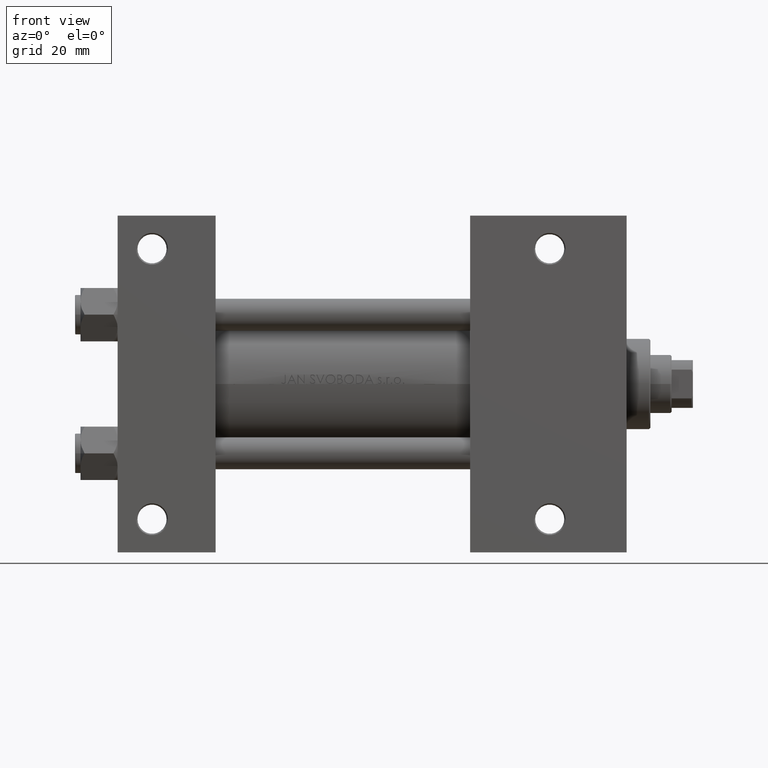
[diagram: clean part render]
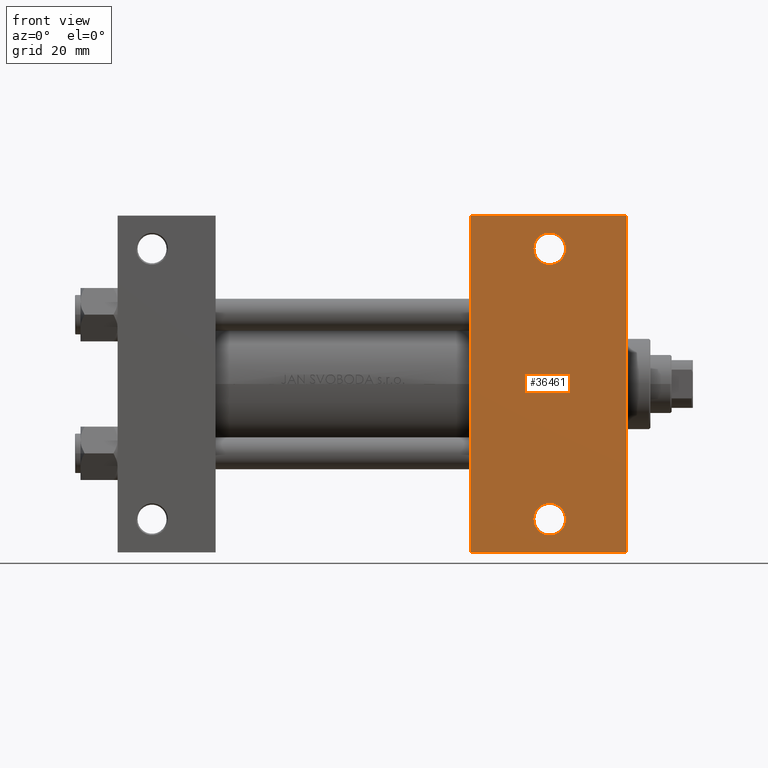
[diagram: same view with one face highlighted and labeled with its STEP entity id]
A machine part, front view. The second image highlights one B-rep face of the part: STEP entity #36461.
In plain terms, the highlighted planar face has unit normal (0, -1, 0).
Its self-contained STEP definition (entity closure, byte-faithful):
#77 = CIRCLE ( 'NONE', #19984, 5.999500000000018929 ) ;
#1293 = VERTEX_POINT ( 'NONE', #18300 ) ;
#2186 = AXIS2_PLACEMENT_3D ( 'NONE', #4698, #19892, #26646 ) ;
#3044 = EDGE_CURVE ( 'NONE', #8174, #33604, #43015, .T. ) ;
#4221 = PLANE ( 'NONE',  #2186 ) ;
#4698 = CARTESIAN_POINT ( 'NONE',  ( 192.0000000000000000, 37.50000000000000000, -37.50000000000000000 ) ) ;
#4987 = VERTEX_POINT ( 'NONE', #5463 ) ;
#5194 = CARTESIAN_POINT ( 'NONE',  ( 192.0000000000000284, 63.50000000000000000, -37.50000000000000000 ) ) ;
#5463 = CARTESIAN_POINT ( 'NONE',  ( 168.9995000000000402, -50.99999999999999289, -37.50000000000000000 ) ) ;
#6143 = ORIENTED_EDGE ( 'NONE', *, *, #33484, .T. ) ;
#6754 = EDGE_CURVE ( 'NONE', #18506, #19015, #23260, .T. ) ;
#7223 = CIRCLE ( 'NONE', #27873, 5.999500000000018929 ) ;
#7704 = AXIS2_PLACEMENT_3D ( 'NONE', #47318, #43349, #39612 ) ;
#8174 = VERTEX_POINT ( 'NONE', #29026 ) ;
#9524 = VECTOR ( 'NONE', #34219, 1000.000000000000000 ) ;
#10185 = ORIENTED_EDGE ( 'NONE', *, *, #24987, .T. ) ;
#10856 = CARTESIAN_POINT ( 'NONE',  ( 192.0000000000000000, -63.50000000000002842, -37.50000000000000000 ) ) ;
#12696 = EDGE_LOOP ( 'NONE', ( #21915, #30621 ) ) ;
#13882 = AXIS2_PLACEMENT_3D ( 'NONE', #45395, #22488, #21998 ) ;
#13919 = VERTEX_POINT ( 'NONE', #31378 ) ;
#14231 = DIRECTION ( 'NONE',  ( -0.000000000000000000, -0.000000000000000000, 1.000000000000000000 ) ) ;
#15231 = CARTESIAN_POINT ( 'NONE',  ( 163.0000000000000284, 51.00000000000000000, -37.50000000000000000 ) ) ;
#15528 = CARTESIAN_POINT ( 'NONE',  ( 192.0000000000000000, 37.50000000000000000, -37.50000000000000000 ) ) ;
#16534 = EDGE_CURVE ( 'NONE', #13919, #24300, #21022, .T. ) ;
#16592 = DIRECTION ( 'NONE',  ( 0.000000000000000000, -1.000000000000000000, 0.000000000000000000 ) ) ;
#18300 = CARTESIAN_POINT ( 'NONE',  ( 157.0005000000000166, -50.99999999999999289, -37.50000000000000000 ) ) ;
#18506 = VERTEX_POINT ( 'NONE', #5194 ) ;
#19015 = VERTEX_POINT ( 'NONE', #10856 ) ;
#19340 = EDGE_LOOP ( 'NONE', ( #23033, #35474 ) ) ;
#19354 = DIRECTION ( 'NONE',  ( -1.000000000000000000, 4.704334850106595794E-16, -0.000000000000000000 ) ) ;
#19892 = DIRECTION ( 'NONE',  ( 0.000000000000000000, 0.000000000000000000, -1.000000000000000000 ) ) ;
#19984 = AXIS2_PLACEMENT_3D ( 'NONE', #15231, #30431, #45625 ) ;
#20434 = CIRCLE ( 'NONE', #7704, 5.999500000000018929 ) ;
#21022 = CIRCLE ( 'NONE', #13882, 5.999500000000018929 ) ;
#21466 = CARTESIAN_POINT ( 'NONE',  ( 163.0000000000000284, -50.99999999999999289, -37.50000000000000000 ) ) ;
#21915 = ORIENTED_EDGE ( 'NONE', *, *, #16534, .T. ) ;
#21998 = DIRECTION ( 'NONE',  ( -1.000000000000000000, 0.000000000000000000, 0.000000000000000000 ) ) ;
#22129 = LINE ( 'NONE', #48762, #25978 ) ;
#22488 = DIRECTION ( 'NONE',  ( -0.000000000000000000, -0.000000000000000000, 1.000000000000000000 ) ) ;
#23033 = ORIENTED_EDGE ( 'NONE', *, *, #43524, .T. ) ;
#23260 = LINE ( 'NONE', #15528, #9524 ) ;
#23593 = CARTESIAN_POINT ( 'NONE',  ( 133.0000000000000000, -63.50000000000000000, -37.50000000000000000 ) ) ;
#24300 = VERTEX_POINT ( 'NONE', #40212 ) ;
#24987 = EDGE_CURVE ( 'NONE', #8174, #18506, #28772, .T. ) ;
#25934 = DIRECTION ( 'NONE',  ( -1.000000000000000000, 0.000000000000000000, 0.000000000000000000 ) ) ;
#25978 = VECTOR ( 'NONE', #19354, 1000.000000000000000 ) ;
#26398 = EDGE_CURVE ( 'NONE', #4987, #1293, #20434, .T. ) ;
#26646 = DIRECTION ( 'NONE',  ( -1.000000000000000000, 0.000000000000000000, -0.000000000000000000 ) ) ;
#26887 = FACE_BOUND ( 'NONE', #19340, .T. ) ;
#27873 = AXIS2_PLACEMENT_3D ( 'NONE', #21466, #14231, #25934 ) ;
#28272 = CARTESIAN_POINT ( 'NONE',  ( 133.0000000000000284, 63.49999999999997158, -37.50000000000000000 ) ) ;
#28772 = LINE ( 'NONE', #28272, #48253 ) ;
#29026 = CARTESIAN_POINT ( 'NONE',  ( 133.0000000000000284, 63.49999999999997158, -37.50000000000000000 ) ) ;
#30431 = DIRECTION ( 'NONE',  ( -0.000000000000000000, -0.000000000000000000, 1.000000000000000000 ) ) ;
#30621 = ORIENTED_EDGE ( 'NONE', *, *, #48488, .T. ) ;
#31378 = CARTESIAN_POINT ( 'NONE',  ( 157.0005000000000166, 51.00000000000000000, -37.50000000000000000 ) ) ;
#32554 = CARTESIAN_POINT ( 'NONE',  ( 133.0000000000000000, 37.50000000000000000, -37.50000000000000000 ) ) ;
#33484 = EDGE_CURVE ( 'NONE', #19015, #33604, #22129, .T. ) ;
#33604 = VERTEX_POINT ( 'NONE', #23593 ) ;
#34219 = DIRECTION ( 'NONE',  ( 0.000000000000000000, -1.000000000000000000, 0.000000000000000000 ) ) ;
#35474 = ORIENTED_EDGE ( 'NONE', *, *, #26398, .T. ) ;
#36461 = ADVANCED_FACE ( 'NONE', ( #42590, #26887, #38840 ), #4221, .T. ) ;
#37740 = ORIENTED_EDGE ( 'NONE', *, *, #3044, .F. ) ;
#38840 = FACE_OUTER_BOUND ( 'NONE', #41958, .T. ) ;
#39612 = DIRECTION ( 'NONE',  ( -1.000000000000000000, 0.000000000000000000, 0.000000000000000000 ) ) ;
#40212 = CARTESIAN_POINT ( 'NONE',  ( 168.9995000000000402, 51.00000000000000000, -37.50000000000000000 ) ) ;
#40474 = DIRECTION ( 'NONE',  ( 1.000000000000000000, 4.704334850106595794E-16, 0.000000000000000000 ) ) ;
#41958 = EDGE_LOOP ( 'NONE', ( #37740, #10185, #46329, #6143 ) ) ;
#42590 = FACE_BOUND ( 'NONE', #12696, .T. ) ;
#43015 = LINE ( 'NONE', #32554, #48543 ) ;
#43349 = DIRECTION ( 'NONE',  ( -0.000000000000000000, -0.000000000000000000, 1.000000000000000000 ) ) ;
#43524 = EDGE_CURVE ( 'NONE', #1293, #4987, #7223, .T. ) ;
#45395 = CARTESIAN_POINT ( 'NONE',  ( 163.0000000000000284, 51.00000000000000000, -37.50000000000000000 ) ) ;
#45625 = DIRECTION ( 'NONE',  ( -1.000000000000000000, 0.000000000000000000, 0.000000000000000000 ) ) ;
#46329 = ORIENTED_EDGE ( 'NONE', *, *, #6754, .T. ) ;
#47318 = CARTESIAN_POINT ( 'NONE',  ( 163.0000000000000284, -50.99999999999999289, -37.50000000000000000 ) ) ;
#48253 = VECTOR ( 'NONE', #40474, 1000.000000000000000 ) ;
#48488 = EDGE_CURVE ( 'NONE', #24300, #13919, #77, .T. ) ;
#48543 = VECTOR ( 'NONE', #16592, 1000.000000000000000 ) ;
#48762 = CARTESIAN_POINT ( 'NONE',  ( 133.0000000000000000, -63.50000000000000000, -37.50000000000000000 ) ) ;